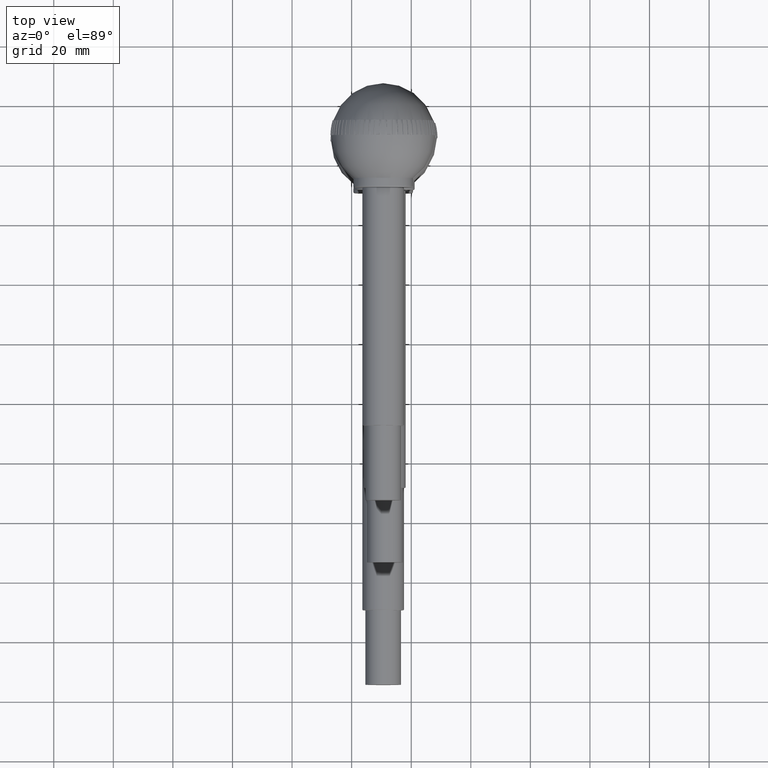
[diagram: clean part render]
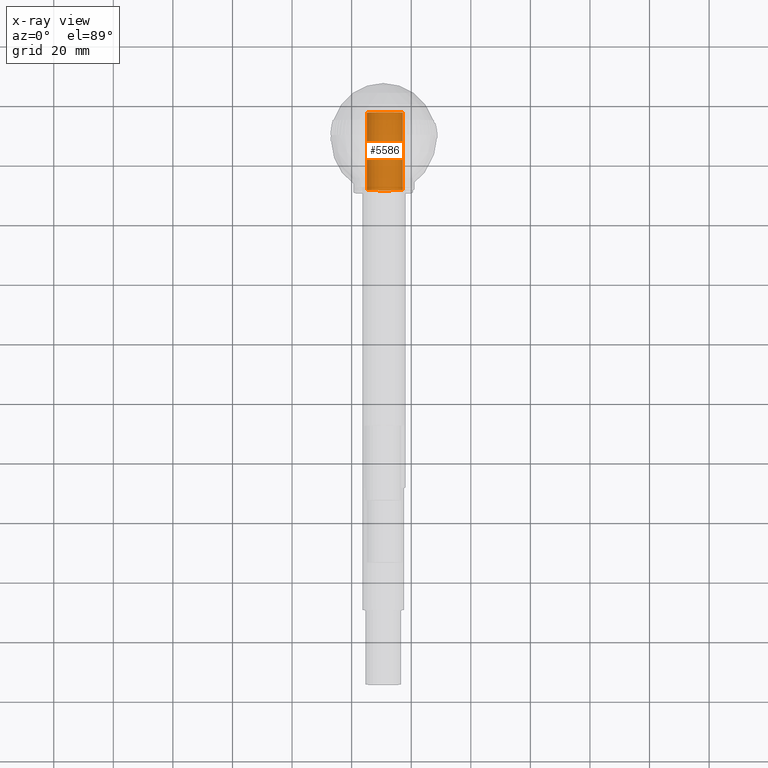
[diagram: x-ray — body ghosted, one internal face saturated and labeled with its STEP entity id]
A machine part, top view, then the same camera in x-ray: the body is ghosted and one INTERNAL B-rep face — a face not visible from any outside direction — is saturated and labeled: STEP entity #5586.
In plain terms, the highlighted cylindrical surface (bore or boss wall) has radius 6 mm, axis along (0, 1, -0).
Its self-contained STEP definition (entity closure, byte-faithful):
#861=CYLINDRICAL_SURFACE('',#6408,6.);
#874=FACE_BOUND('',#1596,.T.);
#1259=FACE_OUTER_BOUND('',#1595,.T.);
#1595=EDGE_LOOP('',(#4680));
#1596=EDGE_LOOP('',(#4681));
#1710=CIRCLE('',#5627,6.);
#2191=CIRCLE('',#6409,6.);
#2219=VERTEX_POINT('',#8447);
#2700=VERTEX_POINT('',#9950);
#2728=EDGE_CURVE('',#2219,#2219,#1710,.T.);
#3449=EDGE_CURVE('',#2700,#2700,#2191,.T.);
#4680=ORIENTED_EDGE('',*,*,#3449,.T.);
#4681=ORIENTED_EDGE('',*,*,#2728,.F.);
#5586=ADVANCED_FACE('',(#1259,#874),#861,.F.);
#5627=AXIS2_PLACEMENT_3D('',#8448,#6493,#6494);
#6408=AXIS2_PLACEMENT_3D('',#9949,#8295,#8296);
#6409=AXIS2_PLACEMENT_3D('',#9951,#8297,#8298);
#6493=DIRECTION('center_axis',(0.,1.,0.));
#6494=DIRECTION('ref_axis',(-1.,0.,0.));
#8295=DIRECTION('center_axis',(0.,1.,0.));
#8296=DIRECTION('ref_axis',(-1.,0.,0.));
#8297=DIRECTION('center_axis',(0.,1.,0.));
#8298=DIRECTION('ref_axis',(-1.,0.,0.));
#8447=CARTESIAN_POINT('',(6.,0.,7.34788079488412E-16));
#8448=CARTESIAN_POINT('Origin',(0.,0.,0.));
#9949=CARTESIAN_POINT('Origin',(0.,0.,0.));
#9950=CARTESIAN_POINT('',(6.,26.,7.34788079488412E-16));
#9951=CARTESIAN_POINT('Origin',(0.,26.,0.));